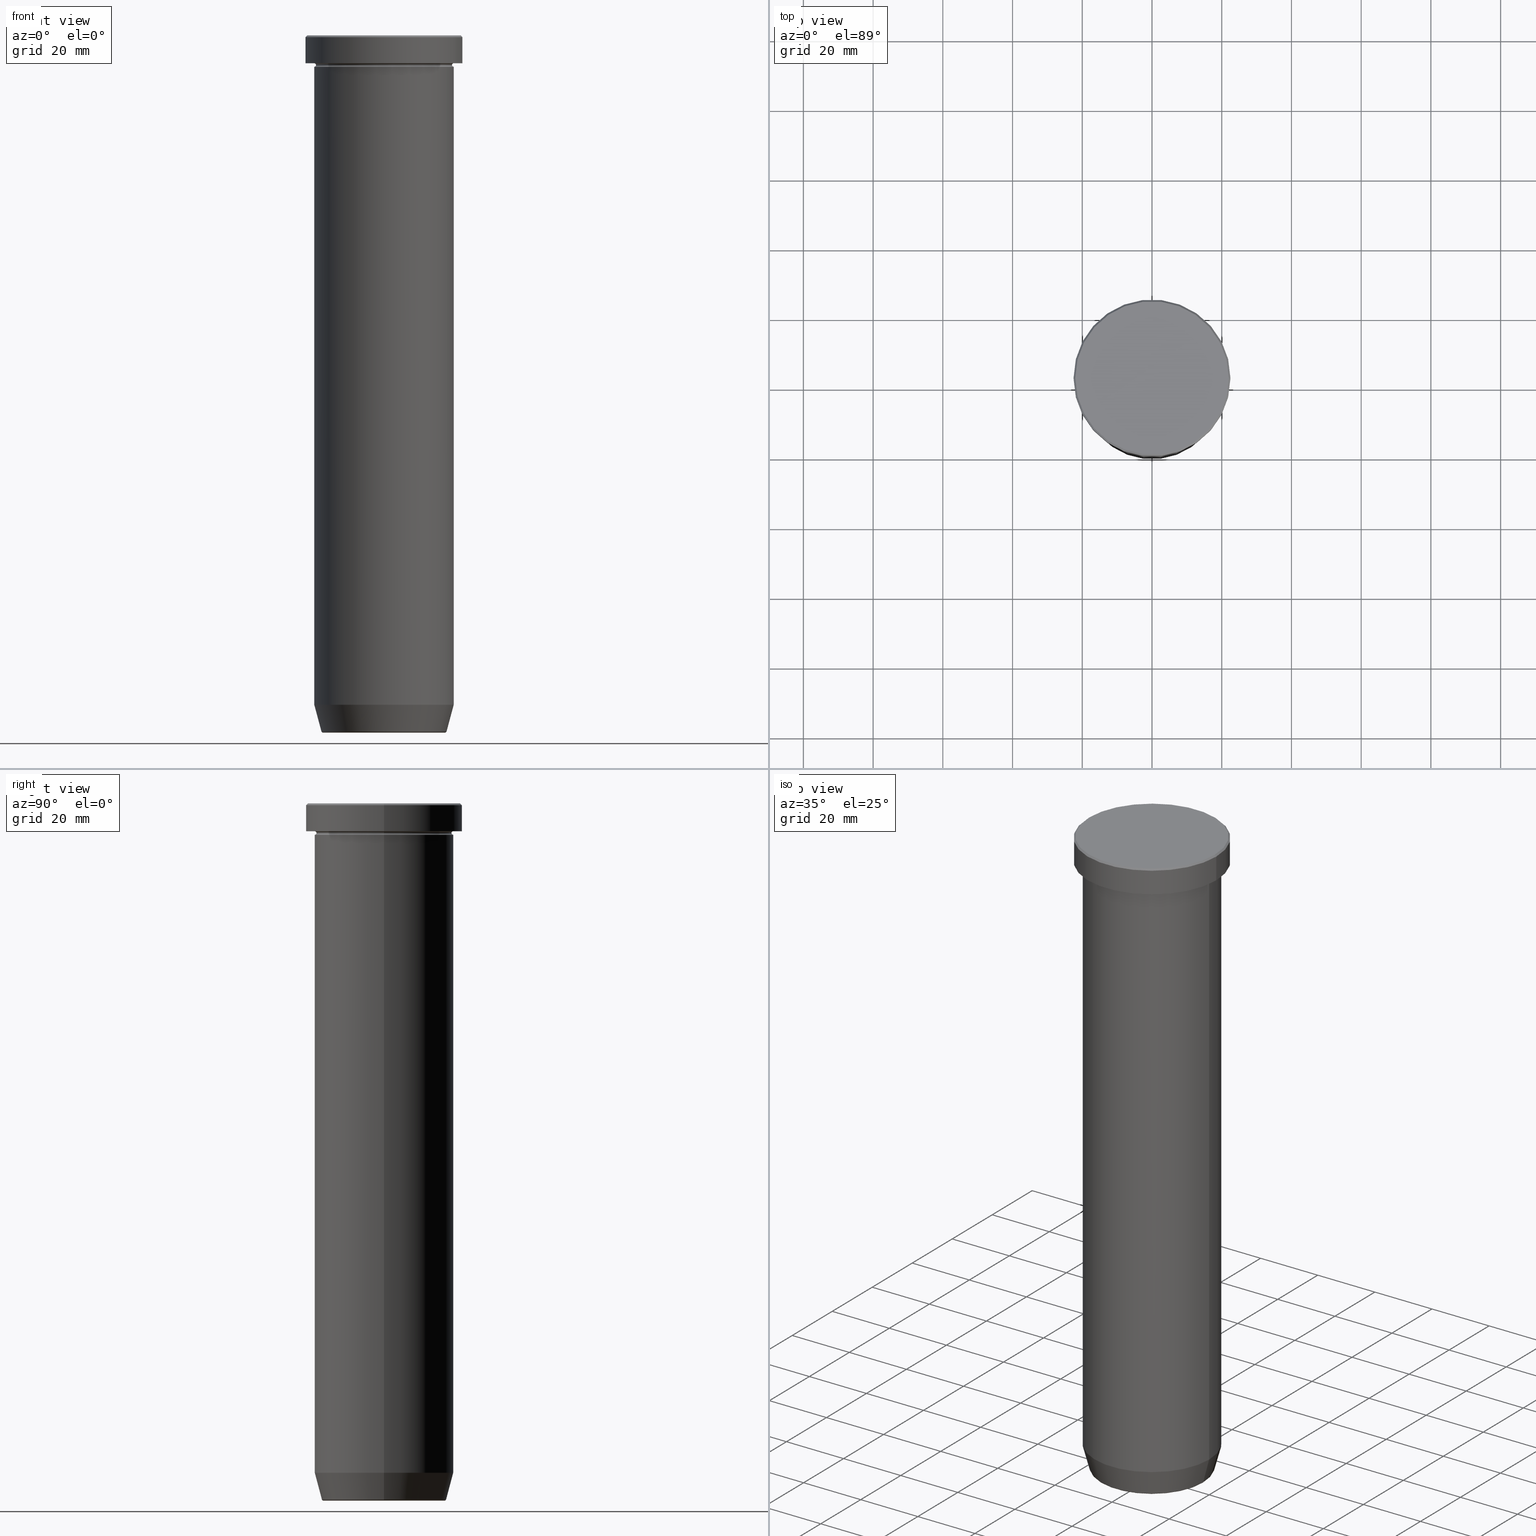
[diagram: canonical four-view strip — front | top / right | iso, engineering-drawing reading convention]
A machine part, canonical four-view strip (front | top / right | iso — engineering-drawing reading convention). The complete STEP part file that produces these views, byte-faithful:
ISO-10303-21;
HEADER;
FILE_DESCRIPTION (( 'STEP AP203' ),
    '1' );
FILE_NAME ('fc9a.STEP',
    '2024-01-02T19:12:39',
    ( '' ),
    ( '' ),
    'SwSTEP 2.0',
    'SolidWorks 2019',
    '' );
FILE_SCHEMA (( 'CONFIG_CONTROL_DESIGN' ));
ENDSEC;

DATA;
#1 = CARTESIAN_POINT ( 'NONE',  ( 0.000000000000000000, 0.000000000000000000, -199.6294095225512706 ) ) ;
#2 = AXIS2_PLACEMENT_3D ( 'NONE', #339, #335, #42 ) ;
#3 = VECTOR ( 'NONE', #46, 1000.000000000000000 ) ;
#4 = CARTESIAN_POINT ( 'NONE',  ( 20.00000000000000000, 0.000000000000000000, -8.499999999999996447 ) ) ;
#5 = ORIENTED_EDGE ( 'NONE', *, *, #14, .T. ) ;
#6 = EDGE_CURVE ( 'NONE', #352, #118, #466, .T. ) ;
#7 = APPROVAL_ROLE ( '' ) ;
#8 = ORIENTED_EDGE ( 'NONE', *, *, #265, .T. ) ;
#9 = DIRECTION ( 'NONE',  ( 0.000000000000000000, 0.000000000000000000, -1.000000000000000000 ) ) ;
#10 = ORIENTED_EDGE ( 'NONE', *, *, #195, .T. ) ;
#11 = DATE_AND_TIME ( #330, #123 ) ;
#12 = DIRECTION ( 'NONE',  ( -0.000000000000000000, -0.000000000000000000, 1.000000000000000000 ) ) ;
#13 = ORIENTED_EDGE ( 'NONE', *, *, #597, .T. ) ;
#14 = EDGE_CURVE ( 'NONE', #201, #141, #471, .T. ) ;
#15 = SECURITY_CLASSIFICATION ( '', '', #44 ) ;
#16 = DIRECTION ( 'NONE',  ( 1.000000000000000000, 0.000000000000000000, 0.000000000000000000 ) ) ;
#17 = DIRECTION ( 'NONE',  ( -0.2588190451025209060, 3.169619151431766790E-17, 0.9659258262890682012 ) ) ;
#18 = DIRECTION ( 'NONE',  ( -0.000000000000000000, -0.000000000000000000, 1.000000000000000000 ) ) ;
#19 = ORIENTED_EDGE ( 'NONE', *, *, #195, .F. ) ;
#20 = CIRCLE ( 'NONE', #535, 20.00000000000000000 ) ;
#21 = DIRECTION ( 'NONE',  ( 0.000000000000000000, 0.000000000000000000, -1.000000000000000000 ) ) ;
#22 = CARTESIAN_POINT ( 'NONE',  ( 0.000000000000000000, 0.000000000000000000, -8.499999999999996447 ) ) ;
#23 = EDGE_CURVE ( 'NONE', #445, #261, #351, .T. ) ;
#24 = ORIENTED_EDGE ( 'NONE', *, *, #98, .F. ) ;
#25 = CARTESIAN_POINT ( 'NONE',  ( 0.000000000000000000, 0.000000000000000000, 0.000000000000000000 ) ) ;
#26 = DIRECTION ( 'NONE',  ( -0.000000000000000000, -0.000000000000000000, 1.000000000000000000 ) ) ;
#27 = DIRECTION ( 'NONE',  ( -1.000000000000000000, -1.224646799147349509E-16, 0.000000000000000000 ) ) ;
#28 = CONICAL_SURFACE ( 'NONE', #446, 22.00000000000000711, 0.7853981633974415066 ) ;
#29 = EDGE_CURVE ( 'NONE', #495, #43, #148, .T. ) ;
#30 = FACE_OUTER_BOUND ( 'NONE', #214, .T. ) ;
#31 = TOROIDAL_SURFACE ( 'NONE', #527, 17.47274296656153680, 0.5000000000000000000 ) ;
#32 = CIRCLE ( 'NONE', #379, 20.00000000000000000 ) ;
#33 = CIRCLE ( 'NONE', #488, 20.00000000000000000 ) ;
#34 = APPLICATION_CONTEXT ( 'configuration controlled 3d designs of mechanical parts and assemblies' ) ;
#35 = DIRECTION ( 'NONE',  ( 1.000000000000000000, 0.000000000000000000, 0.000000000000000000 ) ) ;
#36 = ORIENTED_EDGE ( 'NONE', *, *, #125, .F. ) ;
#37 = CARTESIAN_POINT ( 'NONE',  ( -20.00000000000000000, 2.449293598294706513E-15, -50.00000000000000000 ) ) ;
#38 = DIRECTION ( 'NONE',  ( -0.000000000000000000, -0.000000000000000000, 1.000000000000000000 ) ) ;
#39 = AXIS2_PLACEMENT_3D ( 'NONE', #140, #38, #513 ) ;
#40 = ORIENTED_EDGE ( 'NONE', *, *, #14, .F. ) ;
#41 = EDGE_CURVE ( 'NONE', #68, #199, #32, .T. ) ;
#42 = DIRECTION ( 'NONE',  ( 1.000000000000000000, 0.000000000000000000, 0.000000000000000000 ) ) ;
#43 = VERTEX_POINT ( 'NONE', #253 ) ;
#44 = SECURITY_CLASSIFICATION_LEVEL ( 'unclassified' ) ;
#45 = CARTESIAN_POINT ( 'NONE',  ( 0.000000000000000000, 0.000000000000000000, -8.499999999999996447 ) ) ;
#46 = DIRECTION ( 'NONE',  ( -0.000000000000000000, -0.000000000000000000, 1.000000000000000000 ) ) ;
#47 = COORDINATED_UNIVERSAL_TIME_OFFSET ( 1, 0, .AHEAD. ) ;
#48 = EDGE_CURVE ( 'NONE', #445, #495, #391, .T. ) ;
#49 = AXIS2_PLACEMENT_3D ( 'NONE', #313, #119, #267 ) ;
#50 = CARTESIAN_POINT ( 'NONE',  ( -22.50000000000000000, 2.755455298081544778E-15, 0.000000000000000000 ) ) ;
#51 = VERTEX_POINT ( 'NONE', #436 ) ;
#52 = TOROIDAL_SURFACE ( 'NONE', #196, 20.00000000000000000, 0.5000000000000000000 ) ;
#53 = PERSON_AND_ORGANIZATION_ROLE ( 'creator' ) ;
#54 = EDGE_LOOP ( 'NONE', ( #13, #61 ) ) ;
#55 = CONICAL_SURFACE ( 'NONE', #135, 17.85640646055101399, 0.2617993877991495744 ) ;
#56 = FACE_OUTER_BOUND ( 'NONE', #126, .T. ) ;
#57 = ORIENTED_EDGE ( 'NONE', *, *, #364, .T. ) ;
#58 = FACE_OUTER_BOUND ( 'NONE', #142, .T. ) ;
#59 = EDGE_CURVE ( 'NONE', #257, #141, #86, .T. ) ;
#60 = PERSON_AND_ORGANIZATION ( #395, #360 ) ;
#61 = ORIENTED_EDGE ( 'NONE', *, *, #59, .T. ) ;
#62 = CARTESIAN_POINT ( 'NONE',  ( -20.00000000000000000, 2.449293598294706513E-15, -192.0000000000000000 ) ) ;
#63 = LOCAL_TIME ( 20, 12, 39.00000000000000000, #47 ) ;
#64 = VECTOR ( 'NONE', #259, 1000.000000000000000 ) ;
#65 = LINE ( 'NONE', #249, #390 ) ;
#66 = ORIENTED_EDGE ( 'NONE', *, *, #516, .F. ) ;
#67 = DIRECTION ( 'NONE',  ( 1.000000000000000000, 0.000000000000000000, 0.000000000000000000 ) ) ;
#68 = VERTEX_POINT ( 'NONE', #496 ) ;
#69 = ADVANCED_FACE ( 'NONE', ( #347, #115 ), #160, .T. ) ;
#70 = LINE ( 'NONE', #579, #96 ) ;
#71 = DIRECTION ( 'NONE',  ( 1.000000000000000000, 0.000000000000000000, 0.000000000000000000 ) ) ;
#72 = ORIENTED_EDGE ( 'NONE', *, *, #364, .F. ) ;
#73 = AXIS2_PLACEMENT_3D ( 'NONE', #250, #21, #317 ) ;
#74 = FACE_OUTER_BOUND ( 'NONE', #290, .T. ) ;
#75 = DIRECTION ( 'NONE',  ( -1.000000000000000000, 0.000000000000000000, 0.000000000000000000 ) ) ;
#76 = CARTESIAN_POINT ( 'NONE',  ( -17.47274296656153680, 2.139793874632401172E-15, -199.5000000000000000 ) ) ;
#77 = DIRECTION ( 'NONE',  ( 0.000000000000000000, 0.000000000000000000, -1.000000000000000000 ) ) ;
#78 = ADVANCED_FACE ( 'NONE', ( #117 ), #533, .T. ) ;
#79 = CALENDAR_DATE ( 2024, 2, 1 ) ;
#80 = CARTESIAN_POINT ( 'NONE',  ( 0.000000000000000000, 0.000000000000000000, 0.000000000000000000 ) ) ;
#81 = FACE_OUTER_BOUND ( 'NONE', #240, .T. ) ;
#82 = EDGE_CURVE ( 'NONE', #118, #51, #65, .T. ) ;
#83 = CARTESIAN_POINT ( 'NONE',  ( -20.00000000000000000, 2.449293598294706513E-15, -8.499999999999996447 ) ) ;
#84 = CARTESIAN_POINT ( 'NONE',  ( 17.95570587970606269, 0.000000000000000000, -199.6294095225512706 ) ) ;
#85 = AXIS2_PLACEMENT_3D ( 'NONE', #455, #264, #321 ) ;
#86 = CIRCLE ( 'NONE', #274, 20.00000000000000000 ) ;
#87 = DIRECTION ( 'NONE',  ( -1.000000000000000000, 0.000000000000000000, 0.000000000000000000 ) ) ;
#88 = DIRECTION ( 'NONE',  ( -1.000000000000000000, 0.000000000000000000, 0.000000000000000000 ) ) ;
#89 = CC_DESIGN_PERSON_AND_ORGANIZATION_ASSIGNMENT ( #421, #459, ( #156 ) ) ;
#90 = EDGE_LOOP ( 'NONE', ( #19, #380 ) ) ;
#91 = MECHANICAL_CONTEXT ( 'NONE', #34, 'mechanical' ) ;
#92 = EDGE_LOOP ( 'NONE', ( #202, #382 ) ) ;
#93 = TOROIDAL_SURFACE ( 'NONE', #208, 20.00000000000000000, 0.5000000000000000000 ) ;
#94 = ORIENTED_EDGE ( 'NONE', *, *, #404, .F. ) ;
#95 = LOCAL_TIME ( 20, 12, 39.00000000000000000, #565 ) ;
#96 = VECTOR ( 'NONE', #220, 1000.000000000000000 ) ;
#97 = ORIENTED_EDGE ( 'NONE', *, *, #308, .T. ) ;
#98 = EDGE_CURVE ( 'NONE', #181, #257, #70, .T. ) ;
#99 = CARTESIAN_POINT ( 'NONE',  ( 0.000000000000000000, 0.000000000000000000, -200.0000000000000000 ) ) ;
#100 = CARTESIAN_POINT ( 'NONE',  ( 0.000000000000000000, 0.000000000000000000, -0.5000000000000004441 ) ) ;
#101 = DATE_AND_TIME ( #79, #536 ) ;
#102 = CONICAL_SURFACE ( 'NONE', #179, 22.00000000000000711, 0.7853981633974415066 ) ;
#103 = CARTESIAN_POINT ( 'NONE',  ( -19.50000000000000000, 2.418677428316022726E-15, -8.499999999999996447 ) ) ;
#104 = ORIENTED_EDGE ( 'NONE', *, *, #272, .T. ) ;
#105 = CIRCLE ( 'NONE', #165, 20.00000000000000000 ) ;
#106 = APPROVAL_DATE_TIME ( #101, #534 ) ;
#107 = CARTESIAN_POINT ( 'NONE',  ( 0.000000000000000000, 0.000000000000000000, -50.00000000000000000 ) ) ;
#108 = ORIENTED_EDGE ( 'NONE', *, *, #425, .T. ) ;
#109 = CARTESIAN_POINT ( 'NONE',  ( -22.50000000000000000, 2.755455298081544778E-15, -0.5000000000000004441 ) ) ;
#110 = DIRECTION ( 'NONE',  ( 0.000000000000000000, 0.000000000000000000, -1.000000000000000000 ) ) ;
#111 = CC_DESIGN_PERSON_AND_ORGANIZATION_ASSIGNMENT ( #60, #283, ( #273 ) ) ;
#112 = APPROVAL_DATE_TIME ( #572, #569 ) ;
#113 = CARTESIAN_POINT ( 'NONE',  ( 0.000000000000000000, 0.000000000000000000, 0.000000000000000000 ) ) ;
#114 = TOROIDAL_SURFACE ( 'NONE', #506, 20.00000000000000000, 0.5000000000000000000 ) ;
#115 = FACE_OUTER_BOUND ( 'NONE', #90, .T. ) ;
#116 = EDGE_CURVE ( 'NONE', #118, #352, #263, .T. ) ;
#117 = FACE_OUTER_BOUND ( 'NONE', #403, .T. ) ;
#118 = VERTEX_POINT ( 'NONE', #167 ) ;
#119 = DIRECTION ( 'NONE',  ( -0.000000000000000000, -0.000000000000000000, 1.000000000000000000 ) ) ;
#120 = ORIENTED_EDGE ( 'NONE', *, *, #432, .F. ) ;
#121 = AXIS2_PLACEMENT_3D ( 'NONE', #83, #585, #548 ) ;
#122 = CARTESIAN_POINT ( 'NONE',  ( -20.00000000000000000, 2.449293598294706513E-15, -8.999999999999998224 ) ) ;
#123 = LOCAL_TIME ( 20, 12, 39.00000000000000000, #198 ) ;
#124 = CARTESIAN_POINT ( 'NONE',  ( 0.000000000000000000, 0.000000000000000000, 0.000000000000000000 ) ) ;
#125 = EDGE_CURVE ( 'NONE', #324, #181, #493, .T. ) ;
#126 = EDGE_LOOP ( 'NONE', ( #319, #434, #279, #120 ) ) ;
#127 = COORDINATED_UNIVERSAL_TIME_OFFSET ( 1, 0, .AHEAD. ) ;
#128 = CYLINDRICAL_SURFACE ( 'NONE', #133, 22.50000000000000000 ) ;
#129 = FACE_OUTER_BOUND ( 'NONE', #372, .T. ) ;
#130 = PRODUCT_RELATED_PRODUCT_CATEGORY ( 'detail', '', ( #156 ) ) ;
#131 = CARTESIAN_POINT ( 'NONE',  ( 0.000000000000000000, 0.000000000000000000, -7.999999999999998224 ) ) ;
#132 = ORIENTED_EDGE ( 'NONE', *, *, #169, .T. ) ;
#133 = AXIS2_PLACEMENT_3D ( 'NONE', #80, #510, #276 ) ;
#134 = FACE_OUTER_BOUND ( 'NONE', #464, .T. ) ;
#135 = AXIS2_PLACEMENT_3D ( 'NONE', #355, #575, #215 ) ;
#136 = EDGE_CURVE ( 'NONE', #295, #423, #508, .T. ) ;
#137 = CYLINDRICAL_SURFACE ( 'NONE', #173, 22.50000000000000000 ) ;
#138 = ORIENTED_EDGE ( 'NONE', *, *, #492, .F. ) ;
#139 = ORIENTED_EDGE ( 'NONE', *, *, #265, .F. ) ;
#140 = CARTESIAN_POINT ( 'NONE',  ( 0.000000000000000000, 0.000000000000000000, 0.000000000000000000 ) ) ;
#141 = VERTEX_POINT ( 'NONE', #447 ) ;
#142 = EDGE_LOOP ( 'NONE', ( #414, #332 ) ) ;
#143 = DIRECTION ( 'NONE',  ( 1.000000000000000000, 0.000000000000000000, 0.000000000000000000 ) ) ;
#144 = TOROIDAL_SURFACE ( 'NONE', #489, 20.00000000000000000, 0.5000000000000000000 ) ;
#145 = EDGE_LOOP ( 'NONE', ( #66, #329, #217, #8 ) ) ;
#146 = EDGE_CURVE ( 'NONE', #338, #201, #389, .T. ) ;
#147 = CC_DESIGN_APPROVAL ( #569, ( #15 ) ) ;
#148 = CIRCLE ( 'NONE', #560, 22.50000000000000000 ) ;
#149 = CIRCLE ( 'NONE', #491, 22.00000000000000711 ) ;
#150 = DATE_TIME_ROLE ( 'creation_date' ) ;
#151 = DIRECTION ( 'NONE',  ( 1.000000000000000000, 0.000000000000000000, 0.000000000000000000 ) ) ;
#152 = DIRECTION ( 'NONE',  ( -0.000000000000000000, -0.000000000000000000, 1.000000000000000000 ) ) ;
#153 = CARTESIAN_POINT ( 'NONE',  ( 0.000000000000000000, 0.000000000000000000, -7.999999999999998224 ) ) ;
#154 = CARTESIAN_POINT ( 'NONE',  ( 0.000000000000000000, 0.000000000000000000, -7.999999999999998224 ) ) ;
#155 = ORIENTED_EDGE ( 'NONE', *, *, #291, .F. ) ;
#156 = PRODUCT ( 'fc9a', 'fc9a', '', ( #91 ) ) ;
#157 = ORIENTED_EDGE ( 'NONE', *, *, #354, .F. ) ;
#158 = ADVANCED_FACE ( 'NONE', ( #207 ), #55, .T. ) ;
#159 = ADVANCED_BREP_SHAPE_REPRESENTATION ( 'fc9a', ( #476, #256, #312 ), #226 ) ;
#160 = PLANE ( 'NONE',  #418 ) ;
#161 = CARTESIAN_POINT ( 'NONE',  ( 0.000000000000000000, 22.50000000000000000, -7.999999999999998224 ) ) ;
#162 = CARTESIAN_POINT ( 'NONE',  ( 17.85640646055101399, 0.000000000000000000, -200.0000000000000000 ) ) ;
#163 = EDGE_CURVE ( 'NONE', #576, #338, #480, .T. ) ;
#164 = AXIS2_PLACEMENT_3D ( 'NONE', #4, #594, #523 ) ;
#165 = AXIS2_PLACEMENT_3D ( 'NONE', #221, #26, #402 ) ;
#166 = DIRECTION ( 'NONE',  ( -0.7071067811865426878, 0.000000000000000000, -0.7071067811865524577 ) ) ;
#167 = CARTESIAN_POINT ( 'NONE',  ( 20.00000000000000000, 0.000000000000000000, -50.00000000000000000 ) ) ;
#168 = VERTEX_POINT ( 'NONE', #485 ) ;
#169 = EDGE_CURVE ( 'NONE', #261, #445, #149, .T. ) ;
#170 = DIRECTION ( 'NONE',  ( -1.000000000000000000, 0.000000000000000000, -0.000000000000000000 ) ) ;
#171 = CARTESIAN_POINT ( 'NONE',  ( 20.00000000000000000, 2.449293598294706513E-15, -8.499999999999998224 ) ) ;
#172 = APPROVAL_STATUS ( 'not_yet_approved' ) ;
#173 = AXIS2_PLACEMENT_3D ( 'NONE', #598, #435, #209 ) ;
#174 = LINE ( 'NONE', #511, #553 ) ;
#175 = APPLICATION_PROTOCOL_DEFINITION ( 'international standard', 'config_control_design', 1994, #34 ) ;
#176 = DIRECTION ( 'NONE',  ( 1.000000000000000000, 0.000000000000000000, 0.000000000000000000 ) ) ;
#177 = CARTESIAN_POINT ( 'NONE',  ( -20.00000000000000000, 2.449293598294706513E-15, -50.00000000000000000 ) ) ;
#178 = ADVANCED_FACE ( 'NONE', ( #58 ), #539, .F. ) ;
#179 = AXIS2_PLACEMENT_3D ( 'NONE', #124, #77, #87 ) ;
#180 =( NAMED_UNIT ( * ) SI_UNIT ( $, .STERADIAN. ) SOLID_ANGLE_UNIT ( ) );
#181 = VERTEX_POINT ( 'NONE', #62 ) ;
#182 = CIRCLE ( 'NONE', #85, 20.00000000000000000 ) ;
#183 = DIRECTION ( 'NONE',  ( 1.000000000000000000, 0.000000000000000000, 0.000000000000000000 ) ) ;
#184 = CC_DESIGN_APPROVAL ( #328, ( #273 ) ) ;
#185 = ORIENTED_EDGE ( 'NONE', *, *, #169, .F. ) ;
#186 = DIRECTION ( 'NONE',  ( -0.000000000000000000, -0.000000000000000000, 1.000000000000000000 ) ) ;
#187 = DIRECTION ( 'NONE',  ( 1.000000000000000000, 0.000000000000000000, 0.000000000000000000 ) ) ;
#188 = DIRECTION ( 'NONE',  ( -0.000000000000000000, -0.000000000000000000, 1.000000000000000000 ) ) ;
#189 = APPROVAL_STATUS ( 'not_yet_approved' ) ;
#190 = EDGE_CURVE ( 'NONE', #181, #201, #33, .T. ) ;
#191 = DIRECTION ( 'NONE',  ( -0.000000000000000000, -0.000000000000000000, 1.000000000000000000 ) ) ;
#192 = ORIENTED_EDGE ( 'NONE', *, *, #415, .F. ) ;
#193 = DATE_AND_TIME ( #385, #63 ) ;
#194 = DIRECTION ( 'NONE',  ( -0.000000000000000000, -0.000000000000000000, 1.000000000000000000 ) ) ;
#195 = EDGE_CURVE ( 'NONE', #374, #392, #225, .T. ) ;
#196 = AXIS2_PLACEMENT_3D ( 'NONE', #433, #554, #371 ) ;
#197 = DIRECTION ( 'NONE',  ( 1.000000000000000000, 0.000000000000000000, 0.000000000000000000 ) ) ;
#198 = COORDINATED_UNIVERSAL_TIME_OFFSET ( 1, 0, .AHEAD. ) ;
#199 = VERTEX_POINT ( 'NONE', #277 ) ;
#200 = DIRECTION ( 'NONE',  ( 0.000000000000000000, 0.000000000000000000, -1.000000000000000000 ) ) ;
#201 = VERTEX_POINT ( 'NONE', #497 ) ;
#202 = ORIENTED_EDGE ( 'NONE', *, *, #41, .T. ) ;
#203 = ORIENTED_EDGE ( 'NONE', *, *, #190, .T. ) ;
#204 = DATE_AND_TIME ( #526, #262 ) ;
#205 = EDGE_CURVE ( 'NONE', #43, #495, #367, .T. ) ;
#206 = LINE ( 'NONE', #343, #577 ) ;
#207 = FACE_OUTER_BOUND ( 'NONE', #242, .T. ) ;
#208 = AXIS2_PLACEMENT_3D ( 'NONE', #410, #320, #362 ) ;
#209 = DIRECTION ( 'NONE',  ( 1.000000000000000000, 0.000000000000000000, 0.000000000000000000 ) ) ;
#210 = CARTESIAN_POINT ( 'NONE',  ( -17.85640646055101399, 2.186779101618792051E-15, -200.0000000000000000 ) ) ;
#211 = EDGE_LOOP ( 'NONE', ( #268, #132 ) ) ;
#212 = ADVANCED_FACE ( 'NONE', ( #129 ), #258, .T. ) ;
#213 = CARTESIAN_POINT ( 'NONE',  ( 0.000000000000000000, 0.000000000000000000, -50.00000000000000000 ) ) ;
#214 = EDGE_LOOP ( 'NONE', ( #477, #94, #524, #192 ) ) ;
#215 = DIRECTION ( 'NONE',  ( 1.000000000000000000, 0.000000000000000000, 0.000000000000000000 ) ) ;
#216 = VECTOR ( 'NONE', #241, 1000.000000000000000 ) ;
#217 = ORIENTED_EDGE ( 'NONE', *, *, #370, .T. ) ;
#218 = APPROVAL_PERSON_ORGANIZATION ( #244, #569, #7 ) ;
#219 = AXIS2_PLACEMENT_3D ( 'NONE', #234, #188, #468 ) ;
#220 = DIRECTION ( 'NONE',  ( -0.000000000000000000, -0.000000000000000000, 1.000000000000000000 ) ) ;
#221 = CARTESIAN_POINT ( 'NONE',  ( 0.000000000000000000, 0.000000000000000000, -192.0000000000000000 ) ) ;
#222 = ADVANCED_FACE ( 'NONE', ( #581 ), #28, .T. ) ;
#223 = CARTESIAN_POINT ( 'NONE',  ( 0.000000000000000000, 20.00000000000000000, -50.00000000000000000 ) ) ;
#224 = DIRECTION ( 'NONE',  ( 1.000000000000000000, 0.000000000000000000, 0.000000000000000000 ) ) ;
#225 = CIRCLE ( 'NONE', #301, 22.50000000000000000 ) ;
#226 =( GEOMETRIC_REPRESENTATION_CONTEXT ( 3 ) GLOBAL_UNCERTAINTY_ASSIGNED_CONTEXT ( ( #333 ) ) GLOBAL_UNIT_ASSIGNED_CONTEXT ( ( #342, #412, #180 ) ) REPRESENTATION_CONTEXT ( 'NONE', 'WORKASPACE' ) );
#227 = CARTESIAN_POINT ( 'NONE',  ( -17.95570587970606269, 2.324116685748020582E-15, -199.6294095225512706 ) ) ;
#228 = FACE_OUTER_BOUND ( 'NONE', #145, .T. ) ;
#229 = ADVANCED_FACE ( 'NONE', ( #134 ), #102, .T. ) ;
#230 = ORIENTED_EDGE ( 'NONE', *, *, #415, .T. ) ;
#231 = CYLINDRICAL_SURFACE ( 'NONE', #517, 20.00000000000000000 ) ;
#232 = AXIS2_PLACEMENT_3D ( 'NONE', #1, #239, #88 ) ;
#233 = DIRECTION ( 'NONE',  ( 1.000000000000000000, 0.000000000000000000, 0.000000000000000000 ) ) ;
#234 = CARTESIAN_POINT ( 'NONE',  ( 0.000000000000000000, 0.000000000000000000, -50.00000000000000000 ) ) ;
#235 = ADVANCED_FACE ( 'NONE', ( #501 ), #409, .T. ) ;
#236 = DIRECTION ( 'NONE',  ( -0.000000000000000000, -0.000000000000000000, 1.000000000000000000 ) ) ;
#237 = ORIENTED_EDGE ( 'NONE', *, *, #146, .T. ) ;
#238 = PERSON_AND_ORGANIZATION_ROLE ( 'classification_officer' ) ;
#239 = DIRECTION ( 'NONE',  ( -0.000000000000000000, -0.000000000000000000, 1.000000000000000000 ) ) ;
#240 = EDGE_LOOP ( 'NONE', ( #500, #522, #556, #40 ) ) ;
#241 = DIRECTION ( 'NONE',  ( -0.000000000000000000, -0.000000000000000000, 1.000000000000000000 ) ) ;
#242 = EDGE_LOOP ( 'NONE', ( #36, #230, #237, #520 ) ) ;
#243 = AXIS2_PLACEMENT_3D ( 'NONE', #345, #296, #349 ) ;
#244 = PERSON_AND_ORGANIZATION ( #395, #360 ) ;
#245 = EDGE_LOOP ( 'NONE', ( #10, #57, #401, #454 ) ) ;
#246 = ORIENTED_EDGE ( 'NONE', *, *, #41, .F. ) ;
#247 = ADVANCED_FACE ( 'NONE', ( #81 ), #231, .T. ) ;
#248 = ORIENTED_EDGE ( 'NONE', *, *, #566, .T. ) ;
#249 = CARTESIAN_POINT ( 'NONE',  ( 20.00000000000000000, 0.000000000000000000, 0.000000000000000000 ) ) ;
#250 = CARTESIAN_POINT ( 'NONE',  ( 0.000000000000000000, 0.000000000000000000, -50.00000000000000000 ) ) ;
#251 = CARTESIAN_POINT ( 'NONE',  ( 0.000000000000000000, 0.000000000000000000, -192.0000000000000000 ) ) ;
#252 = ADVANCED_FACE ( 'NONE', ( #269 ), #280, .T. ) ;
#253 = CARTESIAN_POINT ( 'NONE',  ( 22.50000000000000000, 0.000000000000000000, -0.5000000000000004441 ) ) ;
#254 = ORIENTED_EDGE ( 'NONE', *, *, #516, .T. ) ;
#255 = DIRECTION ( 'NONE',  ( -0.000000000000000000, -0.000000000000000000, 1.000000000000000000 ) ) ;
#256 = MANIFOLD_SOLID_BREP ( 'Zaoblit4', #478 ) ;
#257 = VERTEX_POINT ( 'NONE', #37 ) ;
#258 = CONICAL_SURFACE ( 'NONE', #49, 17.85640646055101399, 0.2617993877991495744 ) ;
#259 = DIRECTION ( 'NONE',  ( 0.2588190451025209060, 0.000000000000000000, 0.9659258262890682012 ) ) ;
#260 = AXIS2_PLACEMENT_3D ( 'NONE', #561, #191, #151 ) ;
#261 = VERTEX_POINT ( 'NONE', #540 ) ;
#262 = LOCAL_TIME ( 20, 12, 39.00000000000000000, #297 ) ;
#263 = CIRCLE ( 'NONE', #441, 20.00000000000000000 ) ;
#264 = DIRECTION ( 'NONE',  ( -0.000000000000000000, -0.000000000000000000, 1.000000000000000000 ) ) ;
#265 = EDGE_CURVE ( 'NONE', #51, #562, #182, .T. ) ;
#266 = DIRECTION ( 'NONE',  ( 1.224646799147353207E-16, 1.000000000000000000, 0.000000000000000000 ) ) ;
#267 = DIRECTION ( 'NONE',  ( 1.000000000000000000, 0.000000000000000000, 0.000000000000000000 ) ) ;
#268 = ORIENTED_EDGE ( 'NONE', *, *, #23, .T. ) ;
#269 = FACE_OUTER_BOUND ( 'NONE', #286, .T. ) ;
#270 = PERSON_AND_ORGANIZATION ( #395, #360 ) ;
#271 = CIRCLE ( 'NONE', #293, 22.50000000000000000 ) ;
#272 = EDGE_CURVE ( 'NONE', #352, #562, #174, .T. ) ;
#273 = PRODUCT_DEFINITION_FORMATION_WITH_SPECIFIED_SOURCE ( 'LIBOVOLN�', '', #156, .NOT_KNOWN. ) ;
#274 = AXIS2_PLACEMENT_3D ( 'NONE', #107, #531, #353 ) ;
#275 = DIRECTION ( 'NONE',  ( 0.000000000000000000, -0.000000000000000000, 1.000000000000000000 ) ) ;
#276 = DIRECTION ( 'NONE',  ( 1.000000000000000000, 0.000000000000000000, 0.000000000000000000 ) ) ;
#277 = CARTESIAN_POINT ( 'NONE',  ( 20.00000000000000000, 2.449293598294706513E-15, -7.999999999999998224 ) ) ;
#278 = CARTESIAN_POINT ( 'NONE',  ( -22.00000000000000711, 0.000000000000000000, 0.000000000000000000 ) ) ;
#279 = ORIENTED_EDGE ( 'NONE', *, *, #291, .T. ) ;
#280 = TOROIDAL_SURFACE ( 'NONE', #377, 17.47274296656153680, 0.5000000000000000000 ) ;
#281 = CIRCLE ( 'NONE', #519, 20.00000000000000000 ) ;
#282 = ORIENTED_EDGE ( 'NONE', *, *, #462, .T. ) ;
#283 = PERSON_AND_ORGANIZATION_ROLE ( 'creator' ) ;
#284 = PRODUCT_DEFINITION_SHAPE ( 'NONE', 'NONE',  #580 ) ;
#285 = DIRECTION ( 'NONE',  ( -0.000000000000000000, -0.000000000000000000, 1.000000000000000000 ) ) ;
#286 = EDGE_LOOP ( 'NONE', ( #394, #248, #514, #430 ) ) ;
#287 = APPROVAL_ROLE ( '' ) ;
#288 = LINE ( 'NONE', #50, #216 ) ;
#289 = ORIENTED_EDGE ( 'NONE', *, *, #125, .T. ) ;
#290 = EDGE_LOOP ( 'NONE', ( #481, #104, #139, #592 ) ) ;
#291 = EDGE_CURVE ( 'NONE', #423, #68, #448, .T. ) ;
#292 = CARTESIAN_POINT ( 'NONE',  ( 22.50000000000000000, 0.000000000000000000, 0.000000000000000000 ) ) ;
#293 = AXIS2_PLACEMENT_3D ( 'NONE', #131, #504, #35 ) ;
#294 = CC_DESIGN_SECURITY_CLASSIFICATION ( #15, ( #273 ) ) ;
#295 = VERTEX_POINT ( 'NONE', #546 ) ;
#296 = DIRECTION ( 'NONE',  ( 0.000000000000000000, -1.000000000000000000, 0.000000000000000000 ) ) ;
#297 = COORDINATED_UNIVERSAL_TIME_OFFSET ( 1, 0, .AHEAD. ) ;
#298 = FACE_OUTER_BOUND ( 'NONE', #54, .T. ) ;
#299 = CARTESIAN_POINT ( 'NONE',  ( 0.000000000000000000, 1.836970198721030062E-14, -200.0000000000000000 ) ) ;
#300 = EDGE_CURVE ( 'NONE', #201, #181, #105, .T. ) ;
#301 = AXIS2_PLACEMENT_3D ( 'NONE', #444, #18, #552 ) ;
#302 = DIRECTION ( 'NONE',  ( -0.000000000000000000, -0.000000000000000000, 1.000000000000000000 ) ) ;
#303 = AXIS2_PLACEMENT_3D ( 'NONE', #171, #357, #27 ) ;
#304 = AXIS2_PLACEMENT_3D ( 'NONE', #299, #306, #305 ) ;
#305 = DIRECTION ( 'NONE',  ( 1.000000000000000000, 0.000000000000000000, 0.000000000000000000 ) ) ;
#306 = DIRECTION ( 'NONE',  ( 0.000000000000000000, -0.000000000000000000, 1.000000000000000000 ) ) ;
#307 = CARTESIAN_POINT ( 'NONE',  ( 17.47274296656153680, 0.000000000000000000, -200.0000000000000000 ) ) ;
#308 = EDGE_CURVE ( 'NONE', #295, #199, #407, .T. ) ;
#309 = CARTESIAN_POINT ( 'NONE',  ( -20.00000000000000000, 0.000000000000000000, -8.499999999999998224 ) ) ;
#310 = CIRCLE ( 'NONE', #456, 17.95570587970606269 ) ;
#311 = ORIENTED_EDGE ( 'NONE', *, *, #205, .F. ) ;
#312 = AXIS2_PLACEMENT_3D ( 'NONE', #593, #325, #502 ) ;
#313 = CARTESIAN_POINT ( 'NONE',  ( 0.000000000000000000, 0.000000000000000000, -200.0000000000000000 ) ) ;
#314 = ORIENTED_EDGE ( 'NONE', *, *, #462, .F. ) ;
#315 = DIRECTION ( 'NONE',  ( -0.000000000000000000, -0.000000000000000000, 1.000000000000000000 ) ) ;
#316 = ADVANCED_FACE ( 'NONE', ( #30 ), #31, .T. ) ;
#317 = DIRECTION ( 'NONE',  ( -1.000000000000000000, 0.000000000000000000, -0.000000000000000000 ) ) ;
#318 = CIRCLE ( 'NONE', #559, 0.5000000000000004441 ) ;
#319 = ORIENTED_EDGE ( 'NONE', *, *, #308, .F. ) ;
#320 = DIRECTION ( 'NONE',  ( -0.000000000000000000, -0.000000000000000000, 1.000000000000000000 ) ) ;
#321 = DIRECTION ( 'NONE',  ( 1.000000000000000000, 0.000000000000000000, 0.000000000000000000 ) ) ;
#322 = ORIENTED_EDGE ( 'NONE', *, *, #205, .T. ) ;
#323 = CARTESIAN_POINT ( 'NONE',  ( 0.000000000000000000, 0.000000000000000000, -8.499999999999998224 ) ) ;
#324 = VERTEX_POINT ( 'NONE', #227 ) ;
#325 = DIRECTION ( 'NONE',  ( 0.000000000000000000, 0.000000000000000000, 1.000000000000000000 ) ) ;
#326 = ORIENTED_EDGE ( 'NONE', *, *, #48, .F. ) ;
#327 = CYLINDRICAL_SURFACE ( 'NONE', #39, 20.00000000000000000 ) ;
#328 = APPROVAL ( #189, 'NEUR�EN�' ) ;
#329 = ORIENTED_EDGE ( 'NONE', *, *, #136, .F. ) ;
#330 = CALENDAR_DATE ( 2024, 2, 1 ) ;
#331 = AXIS2_PLACEMENT_3D ( 'NONE', #22, #12, #393 ) ;
#332 = ORIENTED_EDGE ( 'NONE', *, *, #443, .T. ) ;
#333 = UNCERTAINTY_MEASURE_WITH_UNIT (LENGTH_MEASURE( 1.000000000000000082E-05 ), #342, 'distance_accuracy_value', 'NONE');
#334 = DATE_TIME_ROLE ( 'classification_date' ) ;
#335 = DIRECTION ( 'NONE',  ( 0.000000000000000000, 0.000000000000000000, -1.000000000000000000 ) ) ;
#336 = CARTESIAN_POINT ( 'NONE',  ( 20.00000000000000000, 0.000000000000000000, 0.000000000000000000 ) ) ;
#337 = EDGE_CURVE ( 'NONE', #392, #374, #271, .T. ) ;
#338 = VERTEX_POINT ( 'NONE', #84 ) ;
#339 = CARTESIAN_POINT ( 'NONE',  ( 0.000000000000000000, 0.000000000000000000, -200.0000000000000000 ) ) ;
#340 = ORIENTED_EDGE ( 'NONE', *, *, #82, .T. ) ;
#341 = CIRCLE ( 'NONE', #260, 19.50000000000000000 ) ;
#342 =( LENGTH_UNIT ( ) NAMED_UNIT ( * ) SI_UNIT ( .MILLI., .METRE. ) );
#343 = CARTESIAN_POINT ( 'NONE',  ( 22.00000000000000711, 2.694222958124177598E-15, 0.000000000000000000 ) ) ;
#344 = ADVANCED_FACE ( 'NONE', ( #458 ), #114, .F. ) ;
#345 = CARTESIAN_POINT ( 'NONE',  ( 17.47274296656153680, 0.000000000000000000, -199.5000000000000000 ) ) ;
#346 = ORIENTED_EDGE ( 'NONE', *, *, #48, .T. ) ;
#347 = FACE_BOUND ( 'NONE', #92, .T. ) ;
#348 = AXIS2_PLACEMENT_3D ( 'NONE', #366, #363, #224 ) ;
#349 = DIRECTION ( 'NONE',  ( 0.000000000000000000, 0.000000000000000000, -1.000000000000000000 ) ) ;
#350 = AXIS2_PLACEMENT_3D ( 'NONE', #153, #194, #378 ) ;
#351 = CIRCLE ( 'NONE', #507, 22.00000000000000711 ) ;
#352 = VERTEX_POINT ( 'NONE', #177 ) ;
#353 = DIRECTION ( 'NONE',  ( 1.000000000000000000, 0.000000000000000000, 0.000000000000000000 ) ) ;
#354 = EDGE_CURVE ( 'NONE', #423, #295, #341, .T. ) ;
#355 = CARTESIAN_POINT ( 'NONE',  ( 0.000000000000000000, 0.000000000000000000, -200.0000000000000000 ) ) ;
#356 = CC_DESIGN_PERSON_AND_ORGANIZATION_ASSIGNMENT ( #475, #238, ( #15 ) ) ;
#357 = DIRECTION ( 'NONE',  ( -1.224646799147353207E-16, 1.000000000000000000, 0.000000000000000000 ) ) ;
#358 = AXIS2_PLACEMENT_3D ( 'NONE', #99, #9, #233 ) ;
#359 = ORIENTED_EDGE ( 'NONE', *, *, #354, .T. ) ;
#360 = ORGANIZATION ( 'NEUR�EN�', 'NEUR�EN�', '' ) ;
#361 = APPROVAL_ROLE ( '' ) ;
#362 = DIRECTION ( 'NONE',  ( 1.000000000000000000, 0.000000000000000000, 0.000000000000000000 ) ) ;
#363 = DIRECTION ( 'NONE',  ( 0.000000000000000000, 0.000000000000000000, -1.000000000000000000 ) ) ;
#364 = EDGE_CURVE ( 'NONE', #392, #495, #288, .T. ) ;
#365 = CARTESIAN_POINT ( 'NONE',  ( 0.000000000000000000, 0.000000000000000000, -199.5000000000000000 ) ) ;
#366 = CARTESIAN_POINT ( 'NONE',  ( 0.000000000000000000, 0.000000000000000000, -0.5000000000000004441 ) ) ;
#367 = CIRCLE ( 'NONE', #348, 22.50000000000000000 ) ;
#368 = CIRCLE ( 'NONE', #121, 0.5000000000000004441 ) ;
#369 = ORIENTED_EDGE ( 'NONE', *, *, #146, .F. ) ;
#370 = EDGE_CURVE ( 'NONE', #295, #51, #465, .T. ) ;
#371 = DIRECTION ( 'NONE',  ( -1.000000000000000000, 0.000000000000000000, 0.000000000000000000 ) ) ;
#372 = EDGE_LOOP ( 'NONE', ( #108, #289, #599, #369 ) ) ;
#373 = PERSON_AND_ORGANIZATION_ROLE ( 'design_supplier' ) ;
#374 = VERTEX_POINT ( 'NONE', #470 ) ;
#375 = FACE_OUTER_BOUND ( 'NONE', #515, .T. ) ;
#376 = ORIENTED_EDGE ( 'NONE', *, *, #337, .T. ) ;
#377 = AXIS2_PLACEMENT_3D ( 'NONE', #461, #406, #176 ) ;
#378 = DIRECTION ( 'NONE',  ( -1.000000000000000000, 0.000000000000000000, 0.000000000000000000 ) ) ;
#379 = AXIS2_PLACEMENT_3D ( 'NONE', #154, #400, #396 ) ;
#380 = ORIENTED_EDGE ( 'NONE', *, *, #337, .F. ) ;
#381 = ADVANCED_FACE ( 'NONE', ( #375 ), #327, .T. ) ;
#382 = ORIENTED_EDGE ( 'NONE', *, *, #432, .T. ) ;
#383 = DIRECTION ( 'NONE',  ( -1.000000000000000000, 0.000000000000000000, 0.000000000000000000 ) ) ;
#384 = DIRECTION ( 'NONE',  ( 0.000000000000000000, 0.000000000000000000, -1.000000000000000000 ) ) ;
#385 = CALENDAR_DATE ( 2024, 2, 1 ) ;
#386 = ORIENTED_EDGE ( 'NONE', *, *, #492, .T. ) ;
#387 = APPROVAL_DATE_TIME ( #204, #328 ) ;
#388 = CIRCLE ( 'NONE', #350, 20.00000000000000000 ) ;
#389 = LINE ( 'NONE', #162, #64 ) ;
#390 = VECTOR ( 'NONE', #255, 1000.000000000000000 ) ;
#391 = LINE ( 'NONE', #571, #457 ) ;
#392 = VERTEX_POINT ( 'NONE', #429 ) ;
#393 = DIRECTION ( 'NONE',  ( 1.000000000000000000, 0.000000000000000000, 0.000000000000000000 ) ) ;
#394 = ORIENTED_EDGE ( 'NONE', *, *, #443, .F. ) ;
#395 = PERSON ( 'NEUR�EN�', 'NEUR�EN�', 'NEUR�EN�', ('NEUR�EN�'), ('NEUR�EN�'), ('NEUR�EN�') ) ;
#396 = DIRECTION ( 'NONE',  ( -1.000000000000000000, 0.000000000000000000, 0.000000000000000000 ) ) ;
#397 = APPROVAL_PERSON_ORGANIZATION ( #270, #534, #361 ) ;
#398 = ADVANCED_FACE ( 'NONE', ( #473 ), #144, .F. ) ;
#399 = FACE_OUTER_BOUND ( 'NONE', #512, .T. ) ;
#400 = DIRECTION ( 'NONE',  ( -0.000000000000000000, -0.000000000000000000, 1.000000000000000000 ) ) ;
#401 = ORIENTED_EDGE ( 'NONE', *, *, #29, .T. ) ;
#402 = DIRECTION ( 'NONE',  ( 1.000000000000000000, 0.000000000000000000, 0.000000000000000000 ) ) ;
#403 = EDGE_LOOP ( 'NONE', ( #567, #529, #340, #314 ) ) ;
#404 = EDGE_CURVE ( 'NONE', #576, #168, #428, .T. ) ;
#405 = FACE_OUTER_BOUND ( 'NONE', #545, .T. ) ;
#406 = DIRECTION ( 'NONE',  ( -0.000000000000000000, -0.000000000000000000, 1.000000000000000000 ) ) ;
#407 = CIRCLE ( 'NONE', #303, 0.5000000000000004441 ) ;
#408 = CLOSED_SHELL ( 'NONE', ( #222, #398, #344, #587, #483, #550, #235, #573, #69, #78, #528, #469, #229 ) ) ;
#409 = PLANE ( 'NONE',  #525 ) ;
#410 = CARTESIAN_POINT ( 'NONE',  ( 0.000000000000000000, 0.000000000000000000, -8.499999999999996447 ) ) ;
#411 = CARTESIAN_POINT ( 'NONE',  ( 0.000000000000000000, 0.000000000000000000, 0.000000000000000000 ) ) ;
#412 =( NAMED_UNIT ( * ) PLANE_ANGLE_UNIT ( ) SI_UNIT ( $, .RADIAN. ) );
#413 = CARTESIAN_POINT ( 'NONE',  ( 0.000000000000000000, 0.000000000000000000, 0.000000000000000000 ) ) ;
#414 = ORIENTED_EDGE ( 'NONE', *, *, #404, .T. ) ;
#415 = EDGE_CURVE ( 'NONE', #324, #338, #310, .T. ) ;
#416 = AXIS2_PLACEMENT_3D ( 'NONE', #309, #453, #450 ) ;
#417 = CC_DESIGN_APPROVAL ( #534, ( #580 ) ) ;
#418 = AXIS2_PLACEMENT_3D ( 'NONE', #161, #110, #574 ) ;
#419 = DIRECTION ( 'NONE',  ( -0.000000000000000000, -0.000000000000000000, 1.000000000000000000 ) ) ;
#420 = ORIENTED_EDGE ( 'NONE', *, *, #6, .F. ) ;
#421 = PERSON_AND_ORGANIZATION ( #395, #360 ) ;
#422 = FACE_OUTER_BOUND ( 'NONE', #245, .T. ) ;
#423 = VERTEX_POINT ( 'NONE', #103 ) ;
#424 = DIRECTION ( 'NONE',  ( 1.000000000000000000, 0.000000000000000000, 0.000000000000000000 ) ) ;
#425 = EDGE_CURVE ( 'NONE', #338, #324, #498, .T. ) ;
#426 = CARTESIAN_POINT ( 'NONE',  ( 0.000000000000000000, 0.000000000000000000, 0.000000000000000000 ) ) ;
#427 = PERSON_AND_ORGANIZATION ( #395, #360 ) ;
#428 = CIRCLE ( 'NONE', #358, 17.47274296656153680 ) ;
#429 = CARTESIAN_POINT ( 'NONE',  ( -22.50000000000000000, 2.755455298081544778E-15, -7.999999999999998224 ) ) ;
#430 = ORIENTED_EDGE ( 'NONE', *, *, #163, .F. ) ;
#431 = APPROVAL_STATUS ( 'not_yet_approved' ) ;
#432 = EDGE_CURVE ( 'NONE', #199, #68, #388, .T. ) ;
#433 = CARTESIAN_POINT ( 'NONE',  ( 0.000000000000000000, 0.000000000000000000, -8.499999999999998224 ) ) ;
#434 = ORIENTED_EDGE ( 'NONE', *, *, #136, .T. ) ;
#435 = DIRECTION ( 'NONE',  ( -0.000000000000000000, -0.000000000000000000, 1.000000000000000000 ) ) ;
#436 = CARTESIAN_POINT ( 'NONE',  ( 20.00000000000000000, 0.000000000000000000, -8.999999999999998224 ) ) ;
#437 = DIRECTION ( 'NONE',  ( -0.000000000000000000, -0.000000000000000000, 1.000000000000000000 ) ) ;
#438 = CC_DESIGN_DATE_AND_TIME_ASSIGNMENT ( #11, #150, ( #580 ) ) ;
#439 = AXIS2_PLACEMENT_3D ( 'NONE', #25, #186, #424 ) ;
#440 = DIRECTION ( 'NONE',  ( -0.000000000000000000, -0.000000000000000000, 1.000000000000000000 ) ) ;
#441 = AXIS2_PLACEMENT_3D ( 'NONE', #213, #442, #482 ) ;
#442 = DIRECTION ( 'NONE',  ( -0.000000000000000000, -0.000000000000000000, 1.000000000000000000 ) ) ;
#443 = EDGE_CURVE ( 'NONE', #168, #576, #591, .T. ) ;
#444 = CARTESIAN_POINT ( 'NONE',  ( 0.000000000000000000, 0.000000000000000000, -7.999999999999998224 ) ) ;
#445 = VERTEX_POINT ( 'NONE', #278 ) ;
#446 = AXIS2_PLACEMENT_3D ( 'NONE', #590, #586, #75 ) ;
#447 = CARTESIAN_POINT ( 'NONE',  ( 20.00000000000000000, 0.000000000000000000, -50.00000000000000000 ) ) ;
#448 = CIRCLE ( 'NONE', #416, 0.5000000000000004441 ) ;
#449 = CYLINDRICAL_SURFACE ( 'NONE', #439, 20.00000000000000000 ) ;
#450 = DIRECTION ( 'NONE',  ( 0.000000000000000000, 0.000000000000000000, -1.000000000000000000 ) ) ;
#451 = EDGE_CURVE ( 'NONE', #374, #43, #463, .T. ) ;
#452 = DIRECTION ( 'NONE',  ( -1.000000000000000000, 1.224646799147349509E-16, 0.000000000000000000 ) ) ;
#453 = DIRECTION ( 'NONE',  ( -0.000000000000000000, -1.000000000000000000, -0.000000000000000000 ) ) ;
#454 = ORIENTED_EDGE ( 'NONE', *, *, #451, .F. ) ;
#455 = CARTESIAN_POINT ( 'NONE',  ( 0.000000000000000000, 0.000000000000000000, -8.999999999999998224 ) ) ;
#456 = AXIS2_PLACEMENT_3D ( 'NONE', #467, #419, #563 ) ;
#457 = VECTOR ( 'NONE', #166, 1000.000000000000000 ) ;
#458 = FACE_OUTER_BOUND ( 'NONE', #538, .T. ) ;
#459 = PERSON_AND_ORGANIZATION_ROLE ( 'design_owner' ) ;
#460 = ORIENTED_EDGE ( 'NONE', *, *, #23, .F. ) ;
#461 = CARTESIAN_POINT ( 'NONE',  ( 0.000000000000000000, 0.000000000000000000, -199.5000000000000000 ) ) ;
#462 = EDGE_CURVE ( 'NONE', #562, #51, #20, .T. ) ;
#463 = LINE ( 'NONE', #292, #505 ) ;
#464 = EDGE_LOOP ( 'NONE', ( #138, #460, #346, #311 ) ) ;
#465 = CIRCLE ( 'NONE', #164, 0.5000000000000004441 ) ;
#466 = CIRCLE ( 'NONE', #219, 20.00000000000000000 ) ;
#467 = CARTESIAN_POINT ( 'NONE',  ( 0.000000000000000000, 0.000000000000000000, -199.6294095225512706 ) ) ;
#468 = DIRECTION ( 'NONE',  ( 1.000000000000000000, 0.000000000000000000, 0.000000000000000000 ) ) ;
#469 = ADVANCED_FACE ( 'NONE', ( #56 ), #52, .F. ) ;
#470 = CARTESIAN_POINT ( 'NONE',  ( 22.50000000000000000, 0.000000000000000000, -7.999999999999998224 ) ) ;
#471 = LINE ( 'NONE', #336, #3 ) ;
#472 = CARTESIAN_POINT ( 'NONE',  ( 0.000000000000000000, 0.000000000000000000, -50.00000000000000000 ) ) ;
#473 = FACE_OUTER_BOUND ( 'NONE', #596, .T. ) ;
#474 = ORIENTED_EDGE ( 'NONE', *, *, #370, .F. ) ;
#475 = PERSON_AND_ORGANIZATION ( #395, #360 ) ;
#476 = MANIFOLD_SOLID_BREP ( 'Zkosen�1', #408 ) ;
#477 = ORIENTED_EDGE ( 'NONE', *, *, #566, .F. ) ;
#478 = CLOSED_SHELL ( 'NONE', ( #252, #212, #247, #509, #381, #158, #178, #316 ) ) ;
#479 = DIRECTION ( 'NONE',  ( -0.000000000000000000, -0.000000000000000000, 1.000000000000000000 ) ) ;
#480 = CIRCLE ( 'NONE', #243, 0.5000000000000004441 ) ;
#481 = ORIENTED_EDGE ( 'NONE', *, *, #116, .T. ) ;
#482 = DIRECTION ( 'NONE',  ( 1.000000000000000000, 0.000000000000000000, 0.000000000000000000 ) ) ;
#483 = ADVANCED_FACE ( 'NONE', ( #422 ), #137, .T. ) ;
#484 = PLANE ( 'NONE',  #73 ) ;
#485 = CARTESIAN_POINT ( 'NONE',  ( -17.47274296656153680, 2.169366823916868503E-15, -200.0000000000000000 ) ) ;
#486 = CC_DESIGN_DATE_AND_TIME_ASSIGNMENT ( #193, #334, ( #15 ) ) ;
#487 = SHAPE_DEFINITION_REPRESENTATION ( #284, #159 ) ;
#488 = AXIS2_PLACEMENT_3D ( 'NONE', #251, #440, #67 ) ;
#489 = AXIS2_PLACEMENT_3D ( 'NONE', #323, #200, #383 ) ;
#490 = DIRECTION ( 'NONE',  ( 1.000000000000000000, 0.000000000000000000, 0.000000000000000000 ) ) ;
#491 = AXIS2_PLACEMENT_3D ( 'NONE', #578, #537, #16 ) ;
#492 = EDGE_CURVE ( 'NONE', #261, #43, #206, .T. ) ;
#493 = LINE ( 'NONE', #210, #584 ) ;
#494 = DESIGN_CONTEXT ( 'detailed design', #557, 'design' ) ;
#495 = VERTEX_POINT ( 'NONE', #109 ) ;
#496 = CARTESIAN_POINT ( 'NONE',  ( -20.00000000000000000, 0.000000000000000000, -7.999999999999998224 ) ) ;
#497 = CARTESIAN_POINT ( 'NONE',  ( 20.00000000000000000, 0.000000000000000000, -192.0000000000000000 ) ) ;
#498 = CIRCLE ( 'NONE', #232, 17.95570587970606269 ) ;
#499 = DIRECTION ( 'NONE',  ( 1.000000000000000000, 0.000000000000000000, 0.000000000000000000 ) ) ;
#500 = ORIENTED_EDGE ( 'NONE', *, *, #300, .T. ) ;
#501 = FACE_OUTER_BOUND ( 'NONE', #211, .T. ) ;
#502 = DIRECTION ( 'NONE',  ( 1.000000000000000000, 0.000000000000000000, 0.000000000000000000 ) ) ;
#503 = PLANE ( 'NONE',  #543 ) ;
#504 = DIRECTION ( 'NONE',  ( -0.000000000000000000, -0.000000000000000000, 1.000000000000000000 ) ) ;
#505 = VECTOR ( 'NONE', #236, 1000.000000000000000 ) ;
#506 = AXIS2_PLACEMENT_3D ( 'NONE', #45, #285, #143 ) ;
#507 = AXIS2_PLACEMENT_3D ( 'NONE', #426, #152, #197 ) ;
#508 = CIRCLE ( 'NONE', #331, 19.50000000000000000 ) ;
#509 = ADVANCED_FACE ( 'NONE', ( #298 ), #484, .F. ) ;
#510 = DIRECTION ( 'NONE',  ( -0.000000000000000000, -0.000000000000000000, 1.000000000000000000 ) ) ;
#511 = CARTESIAN_POINT ( 'NONE',  ( -20.00000000000000000, 2.449293598294706513E-15, 0.000000000000000000 ) ) ;
#512 = EDGE_LOOP ( 'NONE', ( #589, #420 ) ) ;
#513 = DIRECTION ( 'NONE',  ( 1.000000000000000000, 0.000000000000000000, 0.000000000000000000 ) ) ;
#514 = ORIENTED_EDGE ( 'NONE', *, *, #425, .F. ) ;
#515 = EDGE_LOOP ( 'NONE', ( #24, #203, #5, #558 ) ) ;
#516 = EDGE_CURVE ( 'NONE', #423, #562, #368, .T. ) ;
#517 = AXIS2_PLACEMENT_3D ( 'NONE', #411, #315, #499 ) ;
#519 = AXIS2_PLACEMENT_3D ( 'NONE', #472, #437, #71 ) ;
#518 = PERSON_AND_ORGANIZATION ( #395, #360 ) ;
#520 = ORIENTED_EDGE ( 'NONE', *, *, #190, .F. ) ;
#521 = CARTESIAN_POINT ( 'NONE',  ( 0.000000000000000000, 0.000000000000000000, -8.999999999999998224 ) ) ;
#522 = ORIENTED_EDGE ( 'NONE', *, *, #98, .T. ) ;
#523 = DIRECTION ( 'NONE',  ( 0.000000000000000000, 0.000000000000000000, -1.000000000000000000 ) ) ;
#524 = ORIENTED_EDGE ( 'NONE', *, *, #163, .T. ) ;
#525 = AXIS2_PLACEMENT_3D ( 'NONE', #413, #275, #183 ) ;
#526 = CALENDAR_DATE ( 2024, 2, 1 ) ;
#527 = AXIS2_PLACEMENT_3D ( 'NONE', #365, #588, #549 ) ;
#528 = ADVANCED_FACE ( 'NONE', ( #228 ), #93, .F. ) ;
#529 = ORIENTED_EDGE ( 'NONE', *, *, #6, .T. ) ;
#530 = DIRECTION ( 'NONE',  ( 0.7071067811865426878, 8.659560562354874926E-17, -0.7071067811865524577 ) ) ;
#531 = DIRECTION ( 'NONE',  ( -0.000000000000000000, -0.000000000000000000, 1.000000000000000000 ) ) ;
#532 = CALENDAR_DATE ( 2024, 2, 1 ) ;
#533 = CYLINDRICAL_SURFACE ( 'NONE', #544, 20.00000000000000000 ) ;
#534 = APPROVAL ( #172, 'NEUR�EN�' ) ;
#535 = AXIS2_PLACEMENT_3D ( 'NONE', #521, #479, #187 ) ;
#536 = LOCAL_TIME ( 20, 12, 39.00000000000000000, #127 ) ;
#537 = DIRECTION ( 'NONE',  ( -0.000000000000000000, -0.000000000000000000, 1.000000000000000000 ) ) ;
#538 = EDGE_LOOP ( 'NONE', ( #157, #254, #282, #474 ) ) ;
#539 = PLANE ( 'NONE',  #304 ) ;
#540 = CARTESIAN_POINT ( 'NONE',  ( 22.00000000000000711, 2.724839128102860991E-15, 0.000000000000000000 ) ) ;
#541 = ORIENTED_EDGE ( 'NONE', *, *, #29, .F. ) ;
#542 = CC_DESIGN_PERSON_AND_ORGANIZATION_ASSIGNMENT ( #427, #53, ( #580 ) ) ;
#543 = AXIS2_PLACEMENT_3D ( 'NONE', #223, #582, #170 ) ;
#544 = AXIS2_PLACEMENT_3D ( 'NONE', #113, #302, #490 ) ;
#545 = EDGE_LOOP ( 'NONE', ( #72, #376, #551, #322 ) ) ;
#546 = CARTESIAN_POINT ( 'NONE',  ( 19.50000000000000000, 0.000000000000000000, -8.499999999999996447 ) ) ;
#547 = APPLICATION_PROTOCOL_DEFINITION ( 'international standard', 'config_control_design', 1994, #557 ) ;
#548 = DIRECTION ( 'NONE',  ( -1.000000000000000000, 1.224646799147349509E-16, 0.000000000000000000 ) ) ;
#549 = DIRECTION ( 'NONE',  ( 1.000000000000000000, 0.000000000000000000, 0.000000000000000000 ) ) ;
#550 = ADVANCED_FACE ( 'NONE', ( #399 ), #503, .T. ) ;
#551 = ORIENTED_EDGE ( 'NONE', *, *, #451, .T. ) ;
#552 = DIRECTION ( 'NONE',  ( 1.000000000000000000, 0.000000000000000000, 0.000000000000000000 ) ) ;
#553 = VECTOR ( 'NONE', #583, 1000.000000000000000 ) ;
#554 = DIRECTION ( 'NONE',  ( 0.000000000000000000, 0.000000000000000000, -1.000000000000000000 ) ) ;
#555 = CC_DESIGN_PERSON_AND_ORGANIZATION_ASSIGNMENT ( #568, #373, ( #273 ) ) ;
#556 = ORIENTED_EDGE ( 'NONE', *, *, #597, .F. ) ;
#557 = APPLICATION_CONTEXT ( 'configuration controlled 3d designs of mechanical parts and assemblies' ) ;
#558 = ORIENTED_EDGE ( 'NONE', *, *, #59, .F. ) ;
#559 = AXIS2_PLACEMENT_3D ( 'NONE', #76, #266, #452 ) ;
#560 = AXIS2_PLACEMENT_3D ( 'NONE', #100, #384, #564 ) ;
#561 = CARTESIAN_POINT ( 'NONE',  ( 0.000000000000000000, 0.000000000000000000, -8.499999999999996447 ) ) ;
#562 = VERTEX_POINT ( 'NONE', #122 ) ;
#563 = DIRECTION ( 'NONE',  ( -1.000000000000000000, 0.000000000000000000, 0.000000000000000000 ) ) ;
#564 = DIRECTION ( 'NONE',  ( 1.000000000000000000, 0.000000000000000000, 0.000000000000000000 ) ) ;
#565 = COORDINATED_UNIVERSAL_TIME_OFFSET ( 1, 0, .AHEAD. ) ;
#566 = EDGE_CURVE ( 'NONE', #168, #324, #318, .T. ) ;
#567 = ORIENTED_EDGE ( 'NONE', *, *, #272, .F. ) ;
#568 = PERSON_AND_ORGANIZATION ( #395, #360 ) ;
#569 = APPROVAL ( #431, 'NEUR�EN�' ) ;
#570 = APPROVAL_PERSON_ORGANIZATION ( #518, #328, #287 ) ;
#571 = CARTESIAN_POINT ( 'NONE',  ( -22.00000000000000711, 0.000000000000000000, 0.000000000000000000 ) ) ;
#572 = DATE_AND_TIME ( #532, #95 ) ;
#573 = ADVANCED_FACE ( 'NONE', ( #405 ), #128, .T. ) ;
#574 = DIRECTION ( 'NONE',  ( -1.000000000000000000, 0.000000000000000000, -0.000000000000000000 ) ) ;
#575 = DIRECTION ( 'NONE',  ( -0.000000000000000000, -0.000000000000000000, 1.000000000000000000 ) ) ;
#576 = VERTEX_POINT ( 'NONE', #307 ) ;
#577 = VECTOR ( 'NONE', #530, 1000.000000000000000 ) ;
#578 = CARTESIAN_POINT ( 'NONE',  ( 0.000000000000000000, 0.000000000000000000, 0.000000000000000000 ) ) ;
#579 = CARTESIAN_POINT ( 'NONE',  ( -20.00000000000000000, 2.449293598294706513E-15, 0.000000000000000000 ) ) ;
#580 = PRODUCT_DEFINITION ( 'NEZN�M�', '', #273, #494 ) ;
#581 = FACE_OUTER_BOUND ( 'NONE', #595, .T. ) ;
#582 = DIRECTION ( 'NONE',  ( 0.000000000000000000, 0.000000000000000000, -1.000000000000000000 ) ) ;
#583 = DIRECTION ( 'NONE',  ( -0.000000000000000000, -0.000000000000000000, 1.000000000000000000 ) ) ;
#584 = VECTOR ( 'NONE', #17, 1000.000000000000000 ) ;
#585 = DIRECTION ( 'NONE',  ( 1.224646799147353207E-16, 1.000000000000000000, 0.000000000000000000 ) ) ;
#586 = DIRECTION ( 'NONE',  ( 0.000000000000000000, 0.000000000000000000, -1.000000000000000000 ) ) ;
#587 = ADVANCED_FACE ( 'NONE', ( #74 ), #449, .T. ) ;
#588 = DIRECTION ( 'NONE',  ( -0.000000000000000000, -0.000000000000000000, 1.000000000000000000 ) ) ;
#589 = ORIENTED_EDGE ( 'NONE', *, *, #116, .F. ) ;
#590 = CARTESIAN_POINT ( 'NONE',  ( 0.000000000000000000, 0.000000000000000000, 0.000000000000000000 ) ) ;
#591 = CIRCLE ( 'NONE', #2, 17.47274296656153680 ) ;
#592 = ORIENTED_EDGE ( 'NONE', *, *, #82, .F. ) ;
#593 = CARTESIAN_POINT ( 'NONE',  ( 0.000000000000000000, 0.000000000000000000, 0.000000000000000000 ) ) ;
#594 = DIRECTION ( 'NONE',  ( 0.000000000000000000, -1.000000000000000000, 0.000000000000000000 ) ) ;
#595 = EDGE_LOOP ( 'NONE', ( #185, #386, #541, #326 ) ) ;
#596 = EDGE_LOOP ( 'NONE', ( #359, #97, #246, #155 ) ) ;
#597 = EDGE_CURVE ( 'NONE', #141, #257, #281, .T. ) ;
#598 = CARTESIAN_POINT ( 'NONE',  ( 0.000000000000000000, 0.000000000000000000, 0.000000000000000000 ) ) ;
#599 = ORIENTED_EDGE ( 'NONE', *, *, #300, .F. ) ;
ENDSEC;
END-ISO-10303-21;
